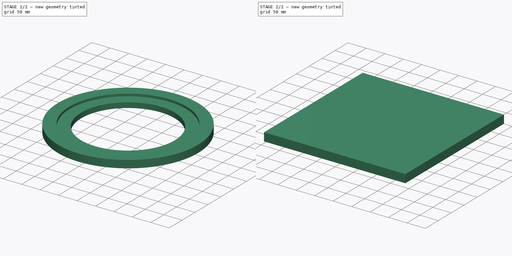
[diagram: build sequence overview — one tinted view per stage of 2, left to right]
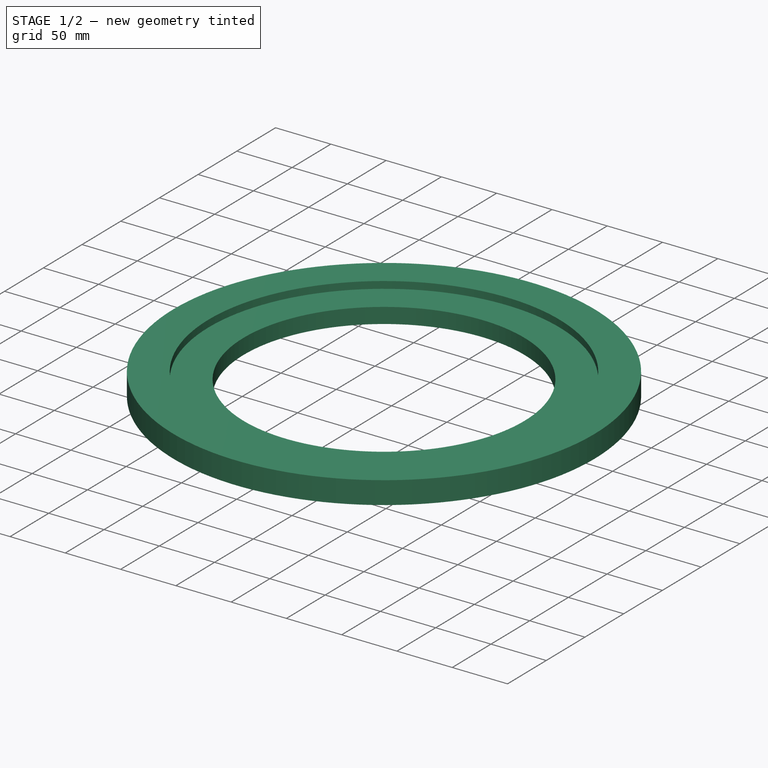
[diagram: stage 1 of 2 — iso view after this stage's code; geometry added in this stage tinted green]
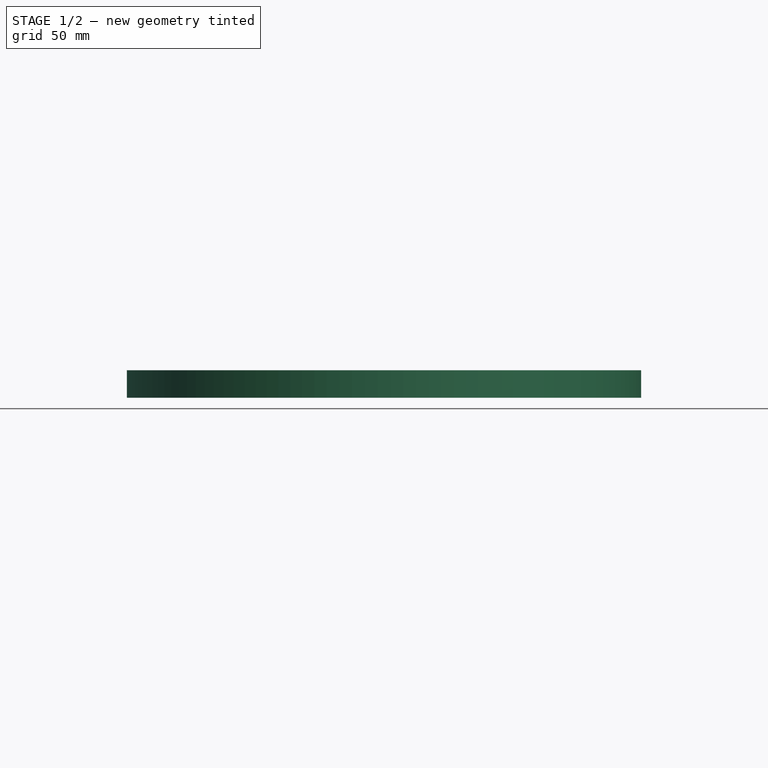
[diagram: stage 1 of 2 — front view after this stage's code; geometry added in this stage tinted green]
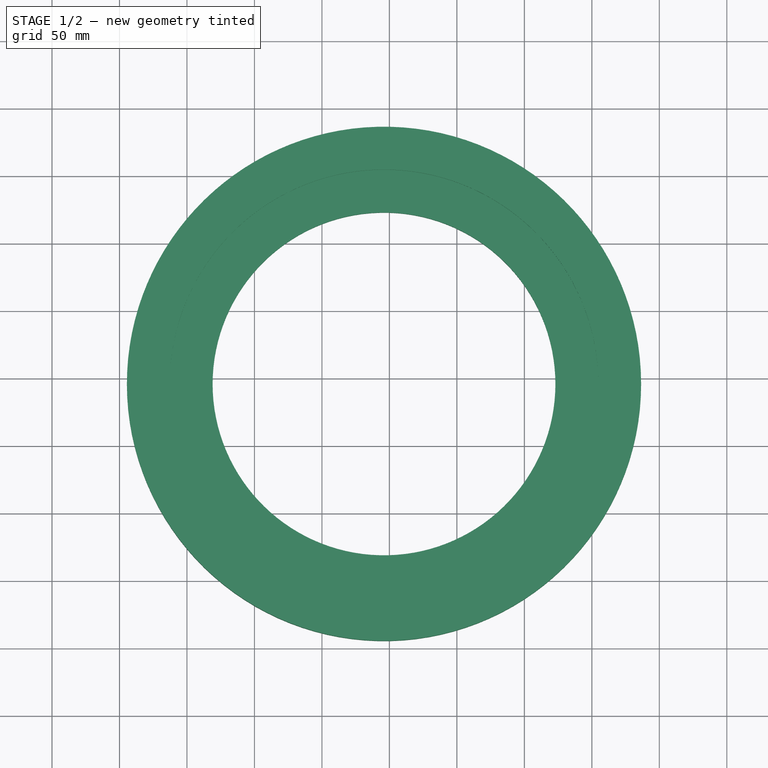
[diagram: stage 1 of 2 — top view after this stage's code; geometry added in this stage tinted green]
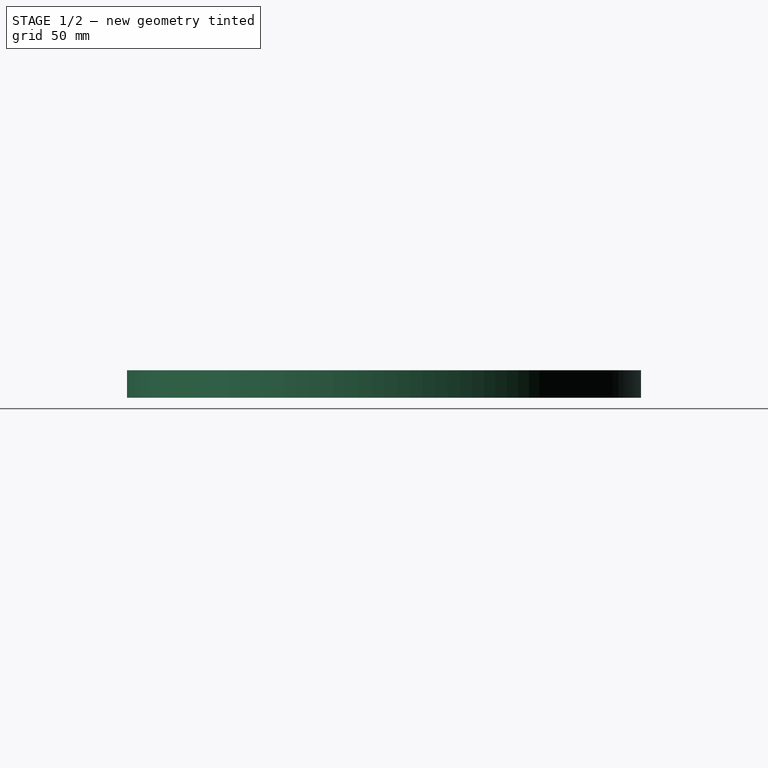
[diagram: stage 1 of 2 — right view after this stage's code; geometry added in this stage tinted green]
FCSTD DOCUMENT  (FreeCAD 0.18R16145 (Git))
Label: DehydratorB
License: All rights reserved
LicenseURL: http://en.wikipedia.org/wiki/All_rights_reserved
objects: Path::FeaturePython×7, TechDraw::DrawViewDimension×5, TechDraw::DrawProjGroupItem×3, TechDraw::DrawGeomHatch×3, Sketcher::SketchObject×2, Part::FeaturePython×2, PartDesign::Pad×1, PartDesign::Pocket×1, PartDesign::Body×1, App::FeaturePython×1, App::DocumentObjectGroup×1, Path::FeatureCompoundPython×1, TechDraw::DrawSVGTemplate×1, TechDraw::DrawProjGroup×1, TechDraw::DrawViewSymbol×1, TechDraw::DrawPage×1
note: 12 computed .brp shape members not serialized (recipe doc carries the construction recipe); baked Part::Feature solids carry a one-line shape summary decoded from their .brp

FEATURE [Sketcher::SketchObject] Sketch
  MapMode = 5
  Support = -> [XY_Plane]
  sketch-geometry (2):
    g0: Circle CenterX=-254 CenterY=-254 CenterZ=0 NormalX=0 NormalY=0 NormalZ=1 AngleXU=0 Radius=190.5
    g1: Circle CenterX=-254 CenterY=-254 CenterZ=0 NormalX=0 NormalY=0 NormalZ=1 AngleXU=0 Radius=127
  constraints (5):
    c: Diameter(g1) = 254
    c: Diameter(g0) = 381
    c: Coincident(g1,g0)
    c: DistanceY(g-1,g0) = -254
    c: DistanceX(g0,g-1) = 254
FEATURE [PartDesign::Pad] Pad
  Length = 20.32
  Length2 = 100.076
  Profile = -> Sketch
  Reversed = true
  Type = 0
FEATURE [Sketcher::SketchObject] Sketch001
  MapMode = 5
  Support = -> [Pad]
  sketch-geometry (1):
    g0: Circle CenterX=-254 CenterY=-254 CenterZ=0 NormalX=0 NormalY=0 NormalZ=1 AngleXU=0 Radius=158.75
  constraints (3):
    c: DistanceX(g0,g-1) = 254
    c: DistanceY(g0,g-1) = 254
    c: Diameter(g0) = 317.5
FEATURE [PartDesign::Pocket] Pocket
  BaseFeature = -> Pad
  Length = 6.35
  Length2 = 100.076
  Profile = -> Sketch001
  Type = 0
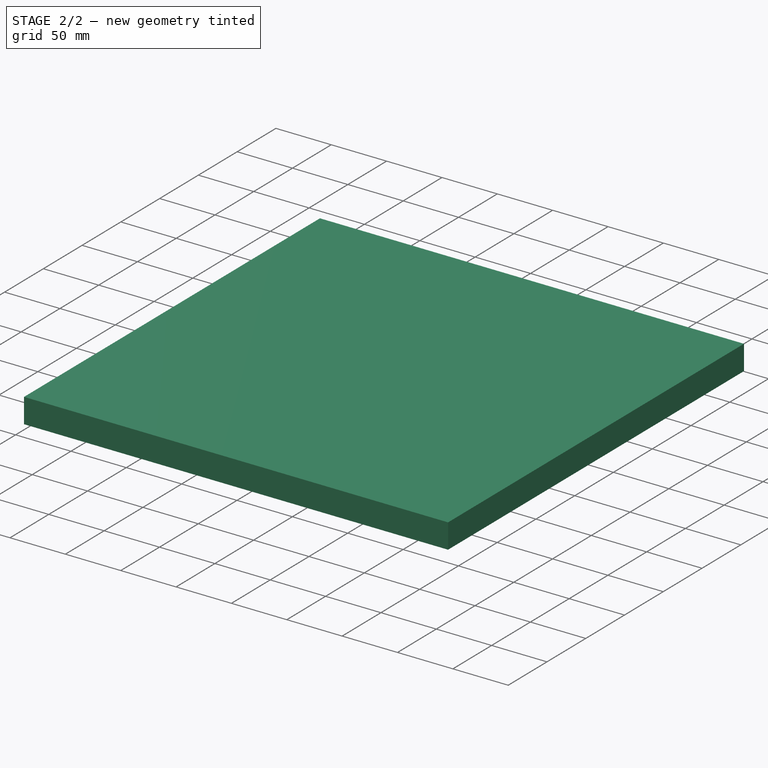
[diagram: stage 2 of 2 — iso view after this stage's code; geometry added in this stage tinted green]
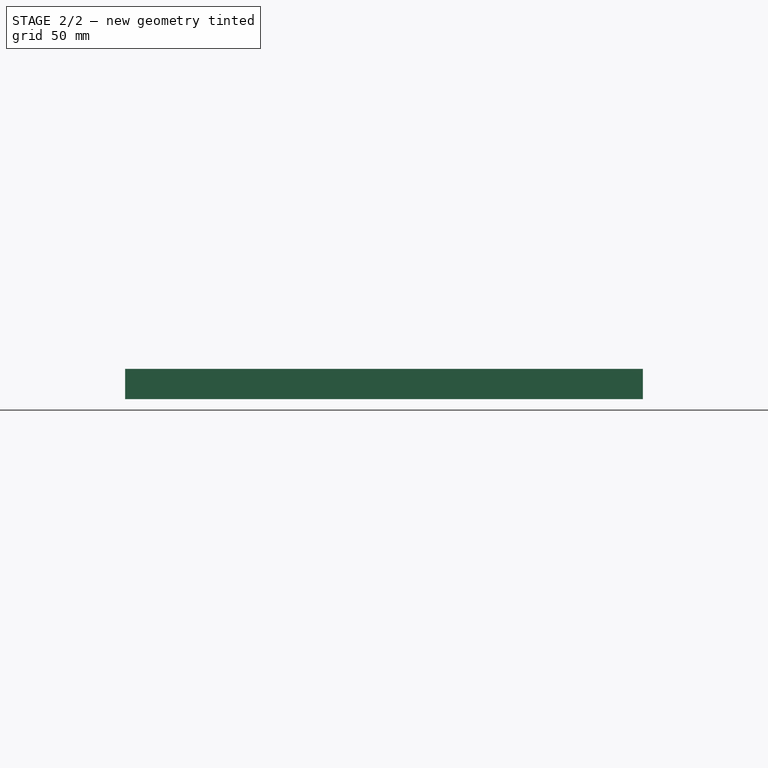
[diagram: stage 2 of 2 — front view after this stage's code; geometry added in this stage tinted green]
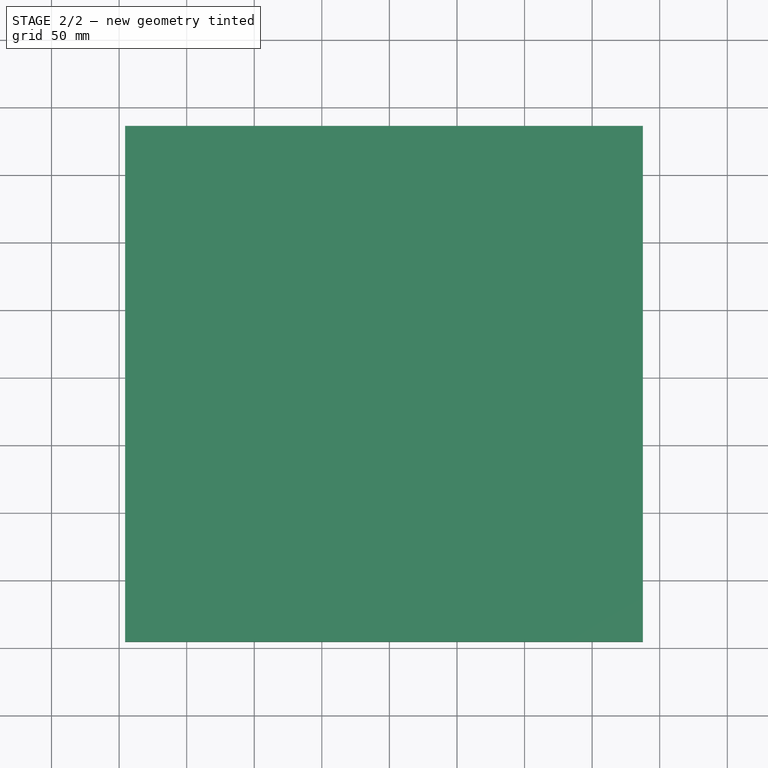
[diagram: stage 2 of 2 — top view after this stage's code; geometry added in this stage tinted green]
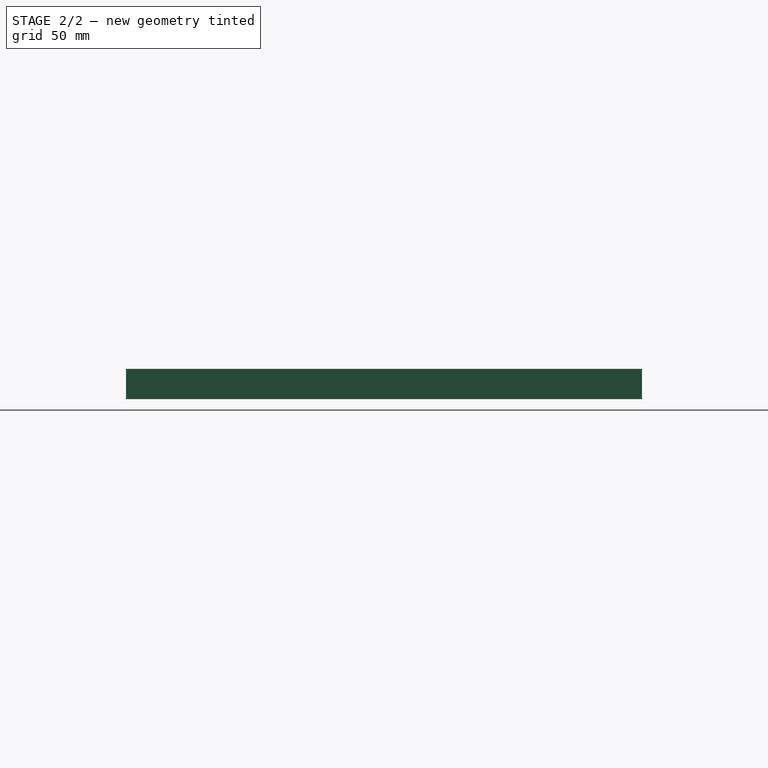
[diagram: stage 2 of 2 — right view after this stage's code; geometry added in this stage tinted green]
FEATURE [PartDesign::Body] Body
  Group = -> [Sketch,Pad,Sketch001,Pocket]
  Origin = -> Origin
  Tip = -> Pocket
FEATURE [App::FeaturePython] SetupSheet  # Path/CAM operation (typed FeaturePython)
  ClearanceHeightExpression = OpStockZMax+SetupSheet.ClearanceHeightOffset
  ClearanceHeightOffset = 5.08
  FinalDepthExpression = OpFinalDepth
  HorizRapid = 100
  SafeHeightExpression = OpStockZMax+SetupSheet.SafeHeightOffset
  SafeHeightOffset = 3.048
  StartDepthExpression = OpStartDepth
  StepDownExpression = OpToolDiameter
  VertRapid = 100
FEATURE [Part::FeaturePython] Clone  label="Model-Body"  # Draft clone (typed FeaturePython)
  AttacherType = Attacher::AttachEngine3D
  Fuse = false
  Objects = -> [Body]
  PathResource = Model
  Scale = (1,1,1)
FEATURE [App::DocumentObjectGroup] Model
  Group = -> [Clone]
FEATURE [Path::FeaturePython] Default_Tool  label="Default Tool"  # Path/CAM operation (typed FeaturePython)
  HorizFeed = 42
  HorizRapid = 100
  SpindleDir = 0
  SpindleSpeed = 0
  ToolNumber = 1
  VertFeed = 42
  VertRapid = 100
  expr: HorizRapid = SetupSheet.HorizRapid
  expr: VertRapid = SetupSheet.VertRapid
FEATURE [Part::FeaturePython] Stock  # WARN: FeaturePython — macro-defined, semantics opaque (R4)
  Base = -> Model
  ExtXneg = 0.999998
  ExtXpos = 0.999998
  ExtYneg = 0.999998
  ExtYpos = 0.999998
  ExtZneg = 0.999998
  ExtZpos = 0.999998
  Placement = pos=(-444.5,-444.5,-20.32) rot=(0,0,1;0rad)
  StockType = FromBase
FEATURE [Path::FeaturePython] Pocket_Shape  # Path/CAM operation (typed FeaturePython)
  Active = true
  AreaParams:
    Tolerance = 1e-07
    FitArcs = True
    Simplify = False
    CleanDistance = 0.0
    Accuracy = 0.01
    Unit = 1.0
    MinArcPoints = 4
    MaxArcPoints = 100
    ClipperScale = 10000000.0
    Fill = 0
    Coplanar = 0
    Reorient = True
    Outline = False
    Explode = False
    OpenMode = 0
    Deflection = 0.01
    SubjectFill = 0
    ClipFill = 0
    Offset = 0.0
    ExtraPass = 0
    Stepover = 0.0
    LastStepover = 0.0
    JoinType = 0
    EndType = 0
    MiterLimit = 2.0
    RoundPrecision = 0.0
    PocketMode = 2
    ToolRadius = 2.5
    PocketExtraOffset = 0.0
    PocketStepover = 5.0
    PocketLastStepover = 0.0
    FromCenter = True
    Angle = 45.0
    AngleShift = 0.0
    Shift = 0.0
    Thicken = False
    SectionCount = -1
    Stepdown = 1.0
    SectionOffset = 0.0
    SectionTolerance = 1e-06
    SectionMode = 2
    Project = False
  Base = -> [Clone]
  ClearanceHeight = 6.08
  CutMode = 0
  ExtraOffset = 0
  FinalDepth = -6.35
  FinishDepth = 0
  KeepToolDown = false
  MinTravel = false
  OffsetPattern = 1
  OpFinalDepth = -6.35
  OpStartDepth = 0.999998
  OpStockZMax = 0.999998
  OpStockZMin = -21.32
  OpToolDiameter = 5
  PathParams = {'orientation': 1, 'feedrate': 42.0, 'feedrate_v': 42.0, 'verbose': True, 'resume_height': 4.0479980000000015, 'retraction': 6.079998000000002, 'return_end': True, 'preamble': False}
  SafeHeight = 4.048
  StartAt = 0
  StartDepth = 0.999998
  StartPoint = (0,0,0)
  StepDown = 5
  StepOver = 100
  ToolController = -> Default_Tool
  UseOutline = false
  UseStartPoint = false
  ZigZagAngle = 45
  expr: ClearanceHeight = OpStockZMax + SetupSheet.ClearanceHeightOffset
  expr: SafeHeight = OpStockZMax + SetupSheet.SafeHeightOffset
  expr: StepDown = OpToolDiameter
  expr: FinalDepth = OpFinalDepth
  expr: StartDepth = OpStartDepth
FEATURE [Path::FeaturePython] Profile_Edges001  # Path/CAM operation (typed FeaturePython)
  Active = true
  AreaParams:
    Tolerance = 1e-07
    FitArcs = True
    Simplify = False
    CleanDistance = 0.0
    Accuracy = 0.01
    Unit = 1.0
    MinArcPoints = 4
    MaxArcPoints = 100
    ClipperScale = 10000000.0
    Fill = 0
    Coplanar = 0
    Reorient = True
    Outline = False
    Explode = False
    OpenMode = 0
    Deflection = 0.01
    SubjectFill = 0
    ClipFill = 0
    Offset = 2.5
    ExtraPass = 0
    Stepover = 0.0
    LastStepover = 0.0
    JoinType = 0
    EndType = 0
    MiterLimit = 2.0
    RoundPrecision = 0.0
    PocketMode = 0
    ToolRadius = 1.0
    PocketExtraOffset = 0.0
    PocketStepover = 0.0
    PocketLastStepover = 0.0
    FromCenter = False
    Angle = 45.0
    AngleShift = 0.0
    Shift = 0.0
    Thicken = False
    SectionCount = -1
    Stepdown = 1.0
    SectionOffset = 0.0
    SectionTolerance = 1e-06
    SectionMode = 2
    Project = False
  Base = -> [Clone]
  ClearanceHeight = 6.08
  Direction = 1
  FinalDepth = -20.32
  JoinType = 0
  MiterLimit = 0.1
  OffsetExtra = 0
  OpFinalDepth = -20.32
  OpStartDepth = 0.999998
  OpStockZMax = 0.999998
  OpStockZMin = -21.32
  OpToolDiameter = 5
  PathParams = {'orientation': 0, 'feedrate': 42.0, 'feedrate_v': 42.0, 'verbose': True, 'resume_height': 4.0479980000000015, 'retraction': 6.079998000000002, 'return_end': True, 'preamble': False}
  SafeHeight = 4.048
  Side = 0
  StartDepth = 0.999998
  StartPoint = (0,0,0)
  StepDown = 5
  ToolController = -> Default_Tool
  UseComp = true
  UseStartPoint = false
  expr: ClearanceHeight = OpStockZMax + SetupSheet.ClearanceHeightOffset
  expr: SafeHeight = OpStockZMax + SetupSheet.SafeHeightOffset
  expr: StepDown = OpToolDiameter
  expr: FinalDepth = OpFinalDepth
  expr: StartDepth = OpStartDepth
FEATURE [Path::FeaturePython] Profile_Edges  # Path/CAM operation (typed FeaturePython)
  Active = true
  AreaParams:
    Tolerance = 1e-07
    FitArcs = True
    Simplify = False
    CleanDistance = 0.0
    Accuracy = 0.01
    Unit = 1.0
    MinArcPoints = 4
    MaxArcPoints = 100
    ClipperScale = 10000000.0
    Fill = 0
    Coplanar = 0
    Reorient = True
    Outline = False
    Explode = False
    OpenMode = 0
    Deflection = 0.01
    SubjectFill = 0
    ClipFill = 0
    Offset = -2.5
    ExtraPass = 0
    Stepover = 0.0
    LastStepover = 0.0
    JoinType = 0
    EndType = 0
    MiterLimit = 2.0
    RoundPrecision = 0.0
    PocketMode = 0
    ToolRadius = 1.0
    PocketExtraOffset = 0.0
    PocketStepover = 0.0
    PocketLastStepover = 0.0
    FromCenter = False
    Angle = 45.0
    AngleShift = 0.0
    Shift = 0.0
    Thicken = False
    SectionCount = -1
    Stepdown = 1.0
    SectionOffset = 0.0
    SectionTolerance = 1e-06
    SectionMode = 2
    Project = False
  Base = -> [Clone]
  ClearanceHeight = 6.08
  Direction = 1
  FinalDepth = -20.32
  JoinType = 0
  MiterLimit = 0.1
  OffsetExtra = 0
  OpFinalDepth = -20.32
  OpStartDepth = 0.999998
  OpStockZMax = 0.999998
  OpStockZMin = -21.32
  OpToolDiameter = 5
  PathParams = {'orientation': 0, 'feedrate': 42.0, 'feedrate_v': 42.0, 'verbose': True, 'resume_height': 4.0479980000000015, 'retraction': 6.079998000000002, 'return_end': True, 'preamble': False}
  SafeHeight = 4.048
  Side = 1
  StartDepth = 0.999998
  StartPoint = (0,0,0)
  StepDown = 5
  ToolController = -> Default_Tool
  UseComp = true
  UseStartPoint = false
  expr: ClearanceHeight = OpStockZMax + SetupSheet.ClearanceHeightOffset
  expr: SafeHeight = OpStockZMax + SetupSheet.SafeHeightOffset
  expr: StepDown = OpToolDiameter
  expr: FinalDepth = OpFinalDepth
  expr: StartDepth = OpStartDepth
FEATURE [Path::FeaturePython] TagDressup  # Path/CAM operation (typed FeaturePython)
  Angle = 90
  Base = -> Profile_Edges001
  Height = 3.302
  Positions = (3) [(-395.942,-123.227,-20.32),(-384.773,-395.942,-20.32),(-74.2172,-324.193,-20.32)]
  Radius = 0
  SegmentationFactor = 50
  Width = 3.302
FEATURE [Path::FeaturePython] TagDressup001  # Path/CAM operation (typed FeaturePython)
  Angle = 90
  Base = -> Profile_Edges
  Height = 3.302
  Positions = (3) [(-346.313,-170.463,0),(-337.537,-346.313,0),(-137.825,-298.762,0)]
  Radius = 0
  SegmentationFactor = 50
  Width = 3.302
FEATURE [Path::FeatureCompoundPython] Operations  # Path/CAM operation (typed FeaturePython)
  Group = -> [Pocket_Shape,TagDressup,TagDressup001]
  UsePlacements = false
FEATURE [Path::FeaturePython] Job  # Path/CAM operation (typed FeaturePython)
  GeometryTolerance = 0
  Model = -> Model
  Operations = -> Operations
  PostProcessor = 4
  SetupSheet = -> SetupSheet
  Stock = -> Stock
  ToolController = -> [Default_Tool]
FEATURE [TechDraw::DrawSVGTemplate] Template
  EditableTexts = Designed_by_Name=Timothy C. Anderson; Drawing_number=0000; FC-Date=11/17/2019; FC-SC=N/A; FC-SH=1 of 1; FC-Title=Filament to Dehydrator Adapter; Subtitle=Side A - Cover Side; Weight=N/A
  Height = 210
  Orientation = 1
  Width = 297
FEATURE [TechDraw::DrawProjGroupItem] ProjItem  label="Front"
  CoarseView = false
  Direction = (0,0,1)
  Focus = 100
  HardHidden = false
  IsoCount = 0
  IsoHidden = false
  IsoVisible = false
  LockPosition = true
  Perspective = false
  Rotation = 0
  RotationVector = (1,0,0)
  Scale = 0.3
  ScaleType = 2
  SeamHidden = false
  SeamVisible = false
  SmoothHidden = false
  SmoothVisible = false
  Source = -> [Pocket]
  Type = 0
  X = 0
  Y = 0
FEATURE [TechDraw::DrawProjGroupItem] ProjItem001  label="Bottom"
  CoarseView = false
  Direction = (0,-1,0)
  Focus = 100
  HardHidden = true
  IsoCount = 0
  IsoHidden = false
  IsoVisible = false
  LockPosition = true
  Perspective = false
  Rotation = 0
  RotationVector = (1,0,0)
  Scale = 0.3
  ScaleType = 2
  SeamHidden = false
  SeamVisible = true
  SmoothHidden = false
  SmoothVisible = false
  Source = -> [Pocket]
  Type = 5
  X = 0
  Y = -92.4298
FEATURE [TechDraw::DrawProjGroupItem] ProjItem002  label="FrontBottomRight"
  CoarseView = false
  Direction = (1,-1,1)
  Focus = 100
  HardHidden = true
  IsoCount = 0
  IsoHidden = false
  IsoVisible = false
  LockPosition = true
  Perspective = false
  Rotation = 0
  RotationVector = (1,0,-1)
  Scale = 0.3
  ScaleType = 2
  SeamHidden = false
  SeamVisible = false
  SmoothHidden = false
  SmoothVisible = false
  Source = -> [Pocket]
  Type = 9
  X = 143.086
  Y = 0.867939
FEATURE [TechDraw::DrawProjGroup] ProjGroup
  Anchor = -> ProjItem
  AutoDistribute = true
  LockPosition = false
  ProjectionType = 2
  Rotation = 0
  Scale = 0.3
  ScaleType = 2
  Source = -> [Pocket]
  Views = -> [ProjItem,ProjItem001,ProjItem002]
  X = 82.6881
  Y = 131.102
  spacingX = 15
  spacingY = 15
FEATURE [TechDraw::DrawGeomHatch] GeomHatch  label="GeomHatchFX1"
  FilePattern = <path>
  NamePattern = Diagonal4
  ScalePattern = 1
  Source = -> ProjItem [Face1]
FEATURE [TechDraw::DrawGeomHatch] GeomHatch001  label="GeomHatch001FX2"
  FilePattern = <path>
  NamePattern = Diagonal4
  ScalePattern = 1
  Source = -> ProjItem002 [Face2]
FEATURE [TechDraw::DrawGeomHatch] GeomHatch002  label="GeomHatch002FX6"
  FilePattern = <path>
  NamePattern = Diagonal4
  ScalePattern = 1
  Source = -> ProjItem002 [Face6]
FEATURE [TechDraw::DrawViewDimension] Dimension
  Arbitrary = false
  FormatSpec = ⌀%.2f
  LockPosition = false
  MeasureType = 1
  OverTolerance = 0
  References2D = -> [ProjItem]
  Rotation = 0
  ScaleType = 0
  Type = 5
  UnderTolerance = 0
  X = -52.8339
  Y = -56.1578
FEATURE [TechDraw::DrawViewDimension] Dimension001
  Arbitrary = false
  FormatSpec = ⌀%.2f
  LockPosition = false
  MeasureType = 1
  OverTolerance = 0
  References2D = -> [ProjItem]
  Rotation = 0
  ScaleType = 0
  Type = 5
  UnderTolerance = 0
  X = 50.1221
  Y = -54.2366
FEATURE [TechDraw::DrawViewDimension] Dimension002
  Arbitrary = false
  FormatSpec = ⌀%.2f
  LockPosition = false
  MeasureType = 1
  OverTolerance = 0
  References2D = -> [ProjItem]
  Rotation = 0
  ScaleType = 0
  Type = 5
  UnderTolerance = 0
  X = 58.7252
  Y = 55.145
FEATURE [TechDraw::DrawViewDimension] Dimension003
  Arbitrary = false
  FormatSpec = %.2f
  LockPosition = false
  MeasureType = 1
  OverTolerance = 0
  References2D = -> [ProjItem001]
  Rotation = 0
  ScaleType = 0
  Type = 2
  UnderTolerance = 0
  X = 56.3122
  Y = -14.7971
FEATURE [TechDraw::DrawViewDimension] Dimension004
  Arbitrary = false
  FormatSpec = %.2f
  LockPosition = false
  MeasureType = 1
  OverTolerance = 0
  References2D = -> [ProjItem001]
  Rotation = 0
  ScaleType = 0
  Type = 2
  UnderTolerance = 0
  X = -65.9693
  Y = 14.2254
FEATURE [TechDraw::DrawViewSymbol] Symbol
  LockPosition = false
  Rotation = 0
  Scale = 0.75
  ScaleType = 2
  Symbol = <blob: 3491 chars omitted>
  X = 174.205
  Y = 30.3853
FEATURE [TechDraw::DrawPage] Page
  KeepUpdated = true
  ProjectionType = 1
  Template = -> Template
  Views = -> [ProjGroup,Dimension,Dimension001,Dimension002,Dimension003,Dimension004,Symbol]
note: 3 file-system paths scrubbed to <path> (originals preserved in the JSON sidecar)
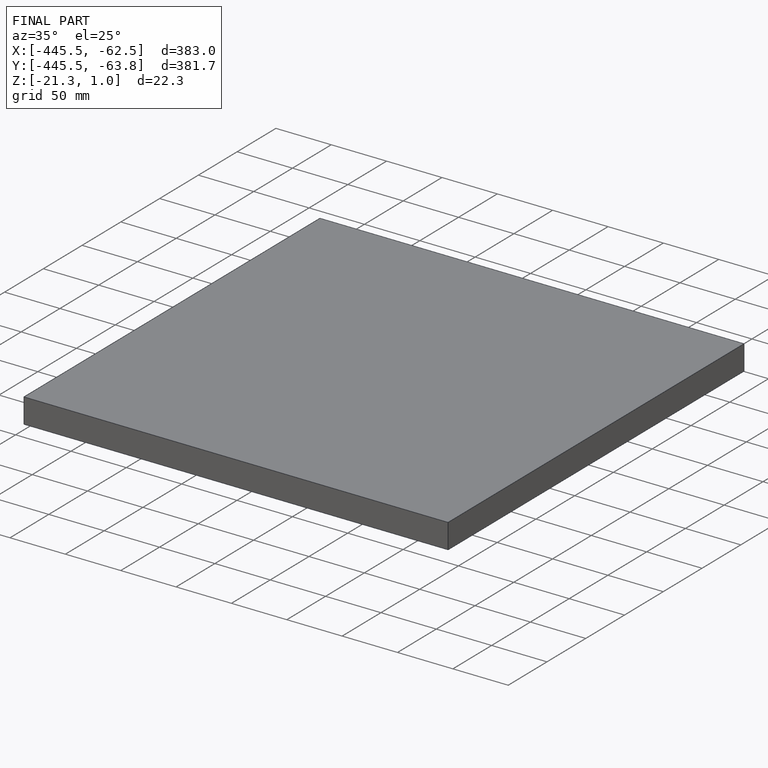
[diagram: finished part — iso view with bounding-box wireframe]
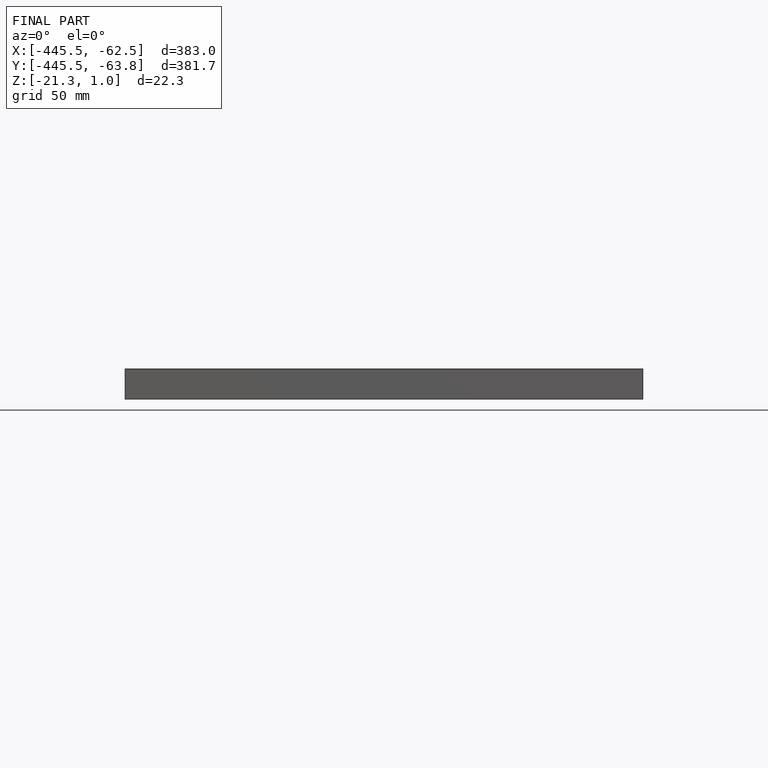
[diagram: finished part — front view with bounding-box wireframe]
